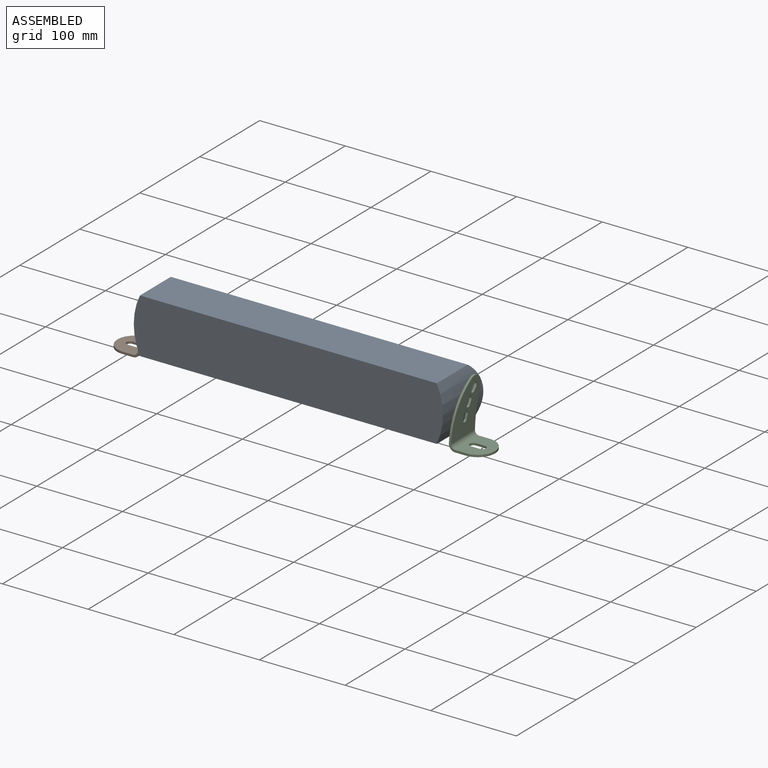
[diagram: assembled view]
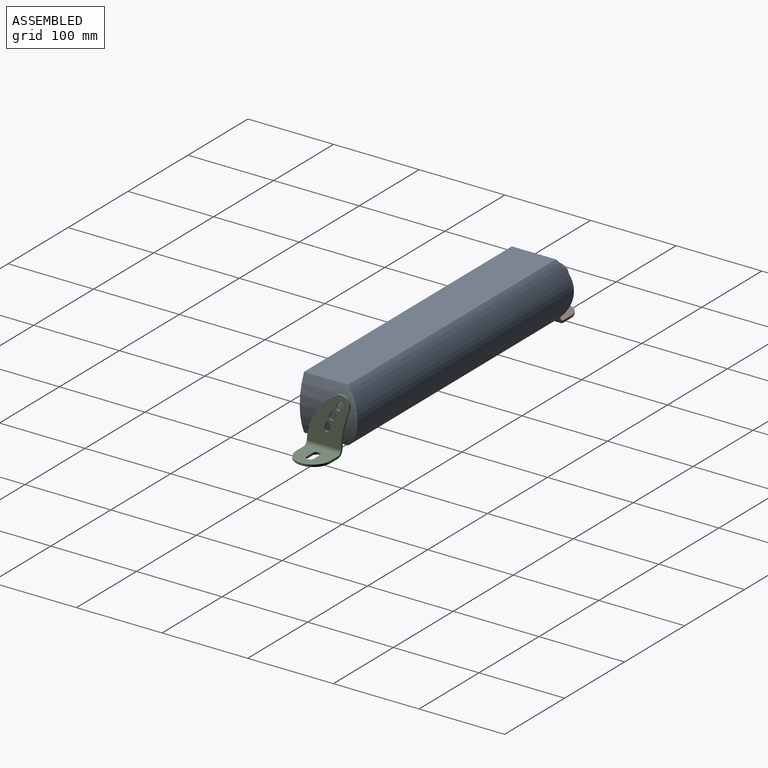
[diagram: assembled view, second angle]
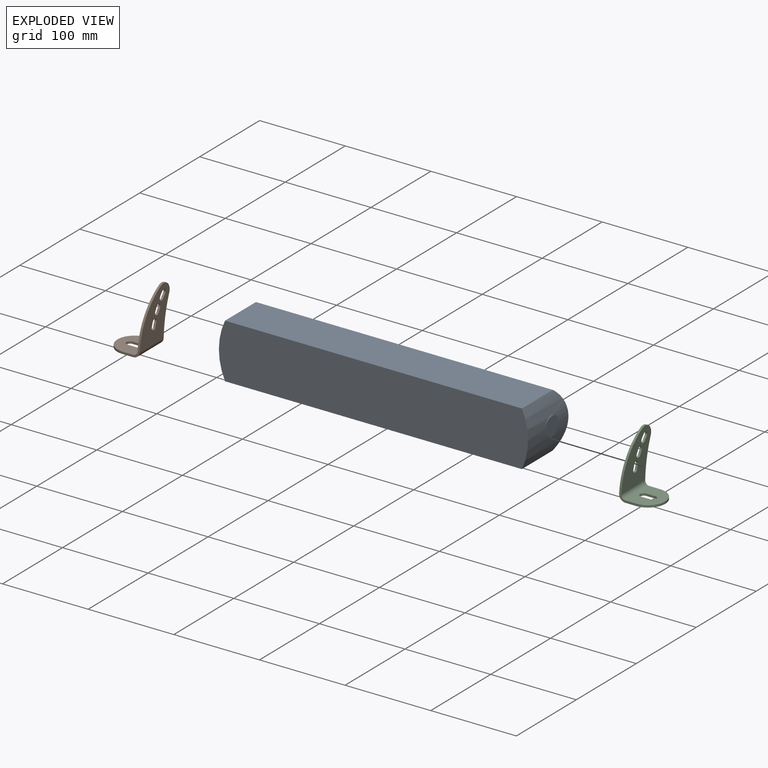
[diagram: exploded view]
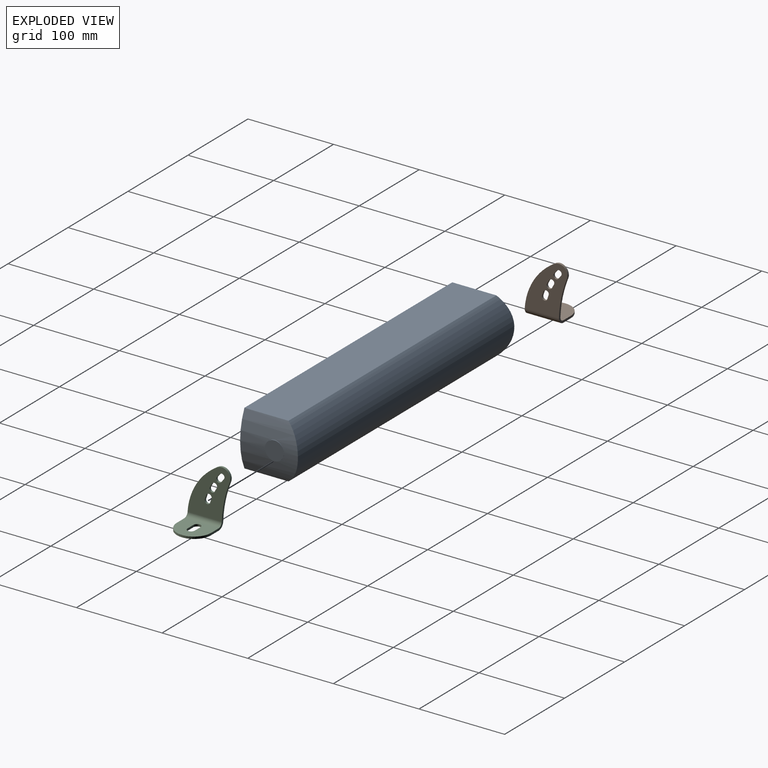
[diagram: exploded view, second angle]
ASSEMBLY  parts=3 mates=2
PART A: 12 faces, bbox 361x67.5x64 mm
  f0: cylinder r=75mm len=67.5mm, axis (0,-1,0), area 3754.5mm2, adj f2,f3,f4,f5,f10,f11
  f1: cylinder r=75mm len=67.5mm, axis (0,-1,0), area 3754.4mm2, adj f2,f3,f4,f5,f7,f8
  f2: plane 360.95x64mm, normal (0,-1,0), area 22801mm2, adj f0,f1,f3,f5
  f3: plane 346.61x51.5mm, normal (0,0,1), area 17850.5mm2, adj f0,f1,f2,f4
  f4: cylinder r=40mm len=360.95mm, axis (-1,0,0), area 26383.1mm2, adj f0,f1,f3,f5
  f5: plane 346.61x51.5mm, normal (0,0,-1), area 17850.5mm2, adj f0,f1,f2,f4
  f6: plane 22x22mm, normal (1,0,0), area 380.1mm2, adj f7,f8
  f7: cylinder r=11mm len=22mm, axis (-1,0,0), area 14mm2, adj f1,f6
  f8: cylinder r=11mm len=22mm, axis (-1,0,0), area 14mm2, adj f1,f6
  f9: plane 22x22mm, normal (-1,0,0), area 380.1mm2, adj f10,f11
  f10: cylinder r=11mm len=22mm, axis (-1,0,0), area 14mm2, adj f0,f9
  f11: cylinder r=11mm len=22mm, axis (-1,0,0), area 14mm2, adj f0,f9
PART B: 30 faces, bbox 40x50x65 mm
  f0: plane 10x2.5mm, normal (0,1,0), area 25mm2, adj f1,f3,f5,f17
  f1: cylinder r=4.25mm len=8.5mm, axis (0,0,-1), area 33.4mm2, adj f0,f2,f5,f17
  f2: plane 10x2.5mm, normal (0,-1,0), area 25mm2, adj f1,f3,f5,f17
  f3: cylinder r=4.25mm len=8.5mm, axis (0,0,-1), area 33.4mm2, adj f0,f2,f5,f17
  f4: cylinder r=20mm len=40mm, axis (0,0,1), area 157.1mm2, adj f5,f16,f17,f18
  f5: plane 40x32.5mm, normal (0,0,1), area 986.6mm2, adj f0,f1,f2,f3,f4,f6,f16,f18
  f6: cylinder r=5mm len=40.09mm, axis (0,-1,0), area 314.2mm2, adj f5,f20,f22,f23
  f7: cylinder r=80.69mm len=4.55mm, axis (1,0,0), area 12mm2, adj f8,f10,f23,f29
  f8: cylinder r=3.25mm len=6.35mm, axis (1,0,0), area 25.5mm2, adj f7,f9,f23,f29
  f9: cylinder r=87.19mm len=4.91mm, axis (1,0,0), area 13mm2, adj f8,f10,f23,f29
  f10: cylinder r=3.25mm len=6.29mm, axis (1,0,0), area 25.5mm2, adj f7,f9,f23,f29
  f11: plane 2.5x1.12mm, normal (0,-0.86,0.5), area 3.2mm2, adj f12,f15,f23,f29
  f12: cylinder r=80.69mm len=3.08mm, axis (1,0,0), area 8.8mm2, adj f11,f13,f23,f29
  f13: cylinder r=3.25mm len=6.14mm, axis (1,0,0), area 25.5mm2, adj f12,f14,f23,f29
  f14: cylinder r=87.19mm len=4.54mm, axis (1,0,0), area 13mm2, adj f13,f15,f23,f29
  f15: cylinder r=3.25mm len=6.04mm, axis (1,0,0), area 25.5mm2, adj f11,f14,f23,f29
  f16: plane 18.09x2.5mm, normal (0,1,0), area 40.9mm2, adj f4,f5,f17,f19,f22
  f17: plane 40x32.5mm, normal (0,0,-1), area 986.6mm2, adj f0,f1,f2,f3,f4,f16,f18,f19
  f18: plane 18.09x2.5mm, normal (0,-1,0), area 40.9mm2, adj f4,f5,f17,f19,f20
  f19: cylinder r=7.5mm len=40.09mm, axis (0,1,0), area 471.2mm2, adj f16,f17,f18,f20,f22,f29
  f20: cylinder r=70.94mm len=61.12mm, axis (-1,0,0), area 186.5mm2, adj f6,f18,f19,f21,f23,f29
  f21: cylinder r=10mm len=15.08mm, axis (-1,0,0), area 62mm2, adj f20,f22,f23,f29
  f22: cylinder r=132.81mm len=48.82mm, axis (-1,0,0), area 127.4mm2, adj f6,f16,f19,f21,f23,f29
  f23: plane 57.5x49.82mm, normal (-1,0,0), area 1693.6mm2, adj f6,f7,f8,f9,f10,f11,f12,f13
  f24: cylinder r=80.69mm len=2.5mm, axis (1,0,0), area 3.8mm2, adj f23,f25,f28,f29
  f25: plane 2.57x2.5mm, normal (0,-0.78,0.62), area 8.2mm2, adj f23,f24,f26,f29
  f26: cylinder r=3.25mm len=5.83mm, axis (1,0,0), area 25.5mm2, adj f23,f25,f27,f29
  f27: cylinder r=87.19mm len=4.03mm, axis (1,0,0), area 13mm2, adj f23,f26,f28,f29
  f28: cylinder r=3.25mm len=5.71mm, axis (1,0,0), area 25.5mm2, adj f23,f24,f27,f29
  f29: plane 57.5x49.82mm, normal (1,0,0), area 1693.6mm2, adj f7,f8,f9,f10,f11,f12,f13,f14
PART C: 30 faces, bbox 40x50x65 mm
  f0: plane 40x32.5mm, normal (0,0,-1), area 986.6mm2, adj f1,f2,f10,f25,f26,f27,f28,f29
  f1: plane 18.09x2.5mm, normal (0,-1,0), area 40.9mm2, adj f0,f5,f8,f10,f25
  f2: plane 18.09x2.5mm, normal (0,1,0), area 40.9mm2, adj f0,f5,f6,f10,f25
  f3: plane 57.5x49.82mm, normal (1,0,0), area 1693.6mm2, adj f6,f7,f8,f9,f11,f12,f13,f14
  f4: plane 57.5x49.82mm, normal (-1,0,0), area 1693.6mm2, adj f6,f7,f8,f10,f11,f12,f13,f14
  f5: plane 40x32.5mm, normal (0,0,1), area 986.6mm2, adj f1,f2,f9,f25,f26,f27,f28,f29
  f6: cylinder r=132.81mm len=48.82mm, axis (-1,0,0), area 127.4mm2, adj f2,f3,f4,f7,f9,f10
  f7: cylinder r=10mm len=15.08mm, axis (-1,0,0), area 62mm2, adj f3,f4,f6,f8
  f8: cylinder r=70.94mm len=61.12mm, axis (-1,0,0), area 186.5mm2, adj f1,f3,f4,f7,f9,f10
  f9: cylinder r=5mm len=40.09mm, axis (0,-1,0), area 314.2mm2, adj f3,f5,f6,f8
  f10: cylinder r=7.5mm len=40.09mm, axis (0,1,0), area 471.2mm2, adj f0,f1,f2,f4,f6,f8
  f11: cylinder r=3.25mm len=6.04mm, axis (1,0,0), area 25.5mm2, adj f3,f4,f12,f15
  f12: cylinder r=87.19mm len=4.54mm, axis (1,0,0), area 13mm2, adj f3,f4,f11,f13
  f13: cylinder r=3.25mm len=6.14mm, axis (1,0,0), area 25.5mm2, adj f3,f4,f12,f14
  f14: cylinder r=80.69mm len=3.08mm, axis (1,0,0), area 8.8mm2, adj f3,f4,f13,f15
  f15: plane 2.5x1.12mm, normal (0,-0.86,0.5), area 3.2mm2, adj f3,f4,f11,f14
  f16: cylinder r=3.25mm len=6.29mm, axis (1,0,0), area 25.5mm2, adj f3,f4,f17,f19
  f17: cylinder r=87.19mm len=4.91mm, axis (1,0,0), area 13mm2, adj f3,f4,f16,f18
  f18: cylinder r=3.25mm len=6.35mm, axis (1,0,0), area 25.5mm2, adj f3,f4,f17,f19
  f19: cylinder r=80.69mm len=4.55mm, axis (1,0,0), area 12mm2, adj f3,f4,f16,f18
  f20: cylinder r=3.25mm len=5.71mm, axis (1,0,0), area 25.5mm2, adj f3,f4,f21,f24
  f21: cylinder r=87.19mm len=4.03mm, axis (1,0,0), area 13mm2, adj f3,f4,f20,f22
  f22: cylinder r=3.25mm len=5.83mm, axis (1,0,0), area 25.5mm2, adj f3,f4,f21,f23
  f23: plane 2.57x2.5mm, normal (0,-0.78,0.62), area 8.2mm2, adj f3,f4,f22,f24
  f24: cylinder r=80.69mm len=2.5mm, axis (1,0,0), area 3.8mm2, adj f3,f4,f20,f23
  f25: cylinder r=20mm len=40mm, axis (0,0,1), area 157.1mm2, adj f0,f1,f2,f5
  f26: plane 10x2.5mm, normal (0,1,0), area 25mm2, adj f0,f5,f27,f29
  f27: cylinder r=4.25mm len=8.5mm, axis (0,0,-1), area 33.4mm2, adj f0,f5,f26,f28
  f28: plane 10x2.5mm, normal (0,-1,0), area 25mm2, adj f0,f5,f27,f29
  f29: cylinder r=4.25mm len=8.5mm, axis (0,0,-1), area 33.4mm2, adj f0,f5,f26,f28
PLACE A t=(-195.48,10.16,40.84)mm
PLACE B t=(-375.95,5,0)mm
PLACE C t=(-15,5,0)mm
MATE fastened B.f29 <-> A.f7  axis (1,0,0) through (-375.95,10.16,40.84)mm
MATE fastened C.f4 <-> A.f7  axis (-1,0,0) through (-15,10.16,40.84)mm
